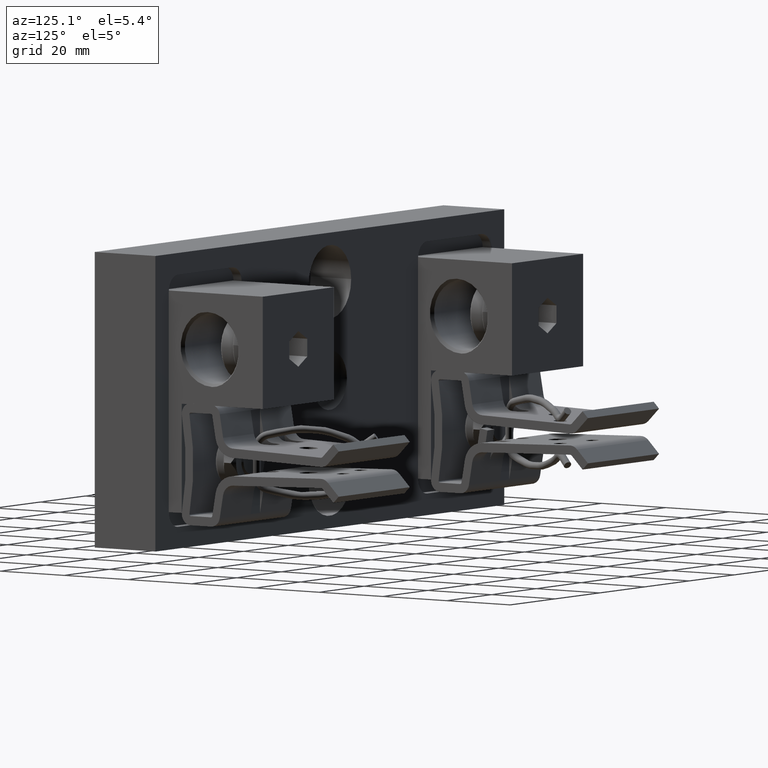
[diagram: clean part render]
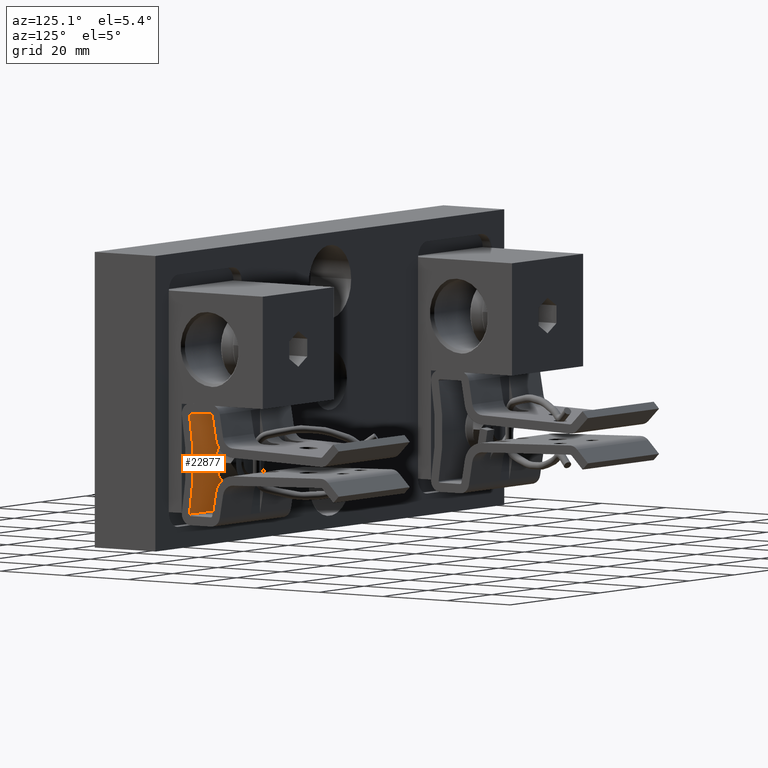
[diagram: same view with one face highlighted and labeled with its STEP entity id]
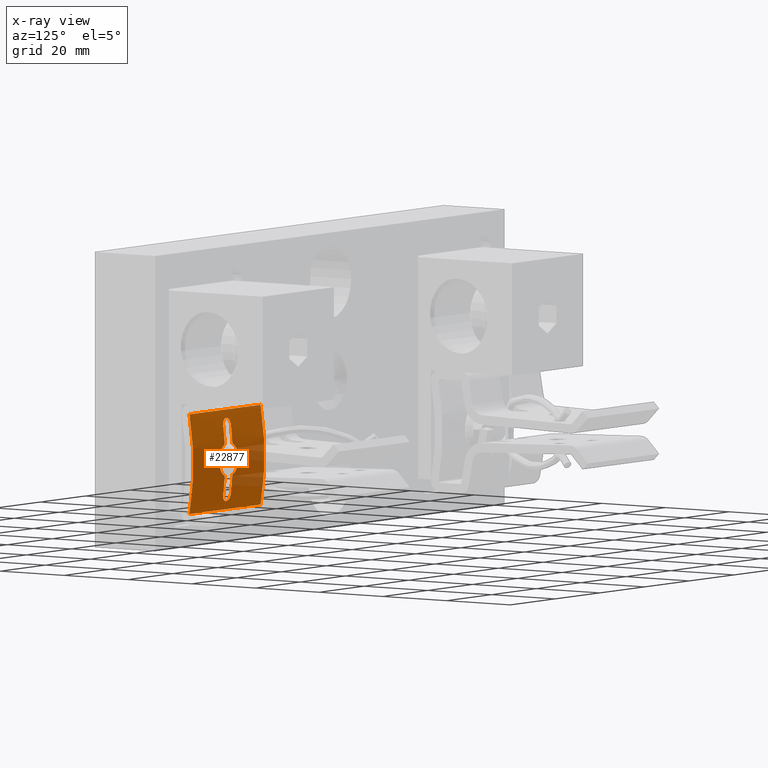
[diagram: x-ray of the same camera — body ghosted, the highlighted face saturated]
A machine part, auxiliary view. The second image highlights one B-rep face of the part: STEP entity #22877.
The next image is the same camera in x-ray: the body ghosted, the highlighted face saturated — about 12% of this face is hidden behind the body in this view.
In plain terms, the highlighted cylindrical surface (partial cylindrical patch) has radius 68.7517 mm, axis along (-1, 0, -0).
Its self-contained STEP definition (entity closure, byte-faithful):
#39 = CARTESIAN_POINT ( 'NONE',  ( 2.362001392721677600, 1.042000088499937000, -0.6116996189345611500 ) ) ;
#98 = CIRCLE ( 'NONE', #29874, 2.706760416666660800 ) ;
#139 = ORIENTED_EDGE ( 'NONE', *, *, #29352, .T. ) ;
#157 = CARTESIAN_POINT ( 'NONE',  ( 2.273037296817359100, 1.037760978058167400, -0.4684276981722396700 ) ) ;
#337 = LINE ( 'NONE', #15618, #7311 ) ;
#514 = DIRECTION ( 'NONE',  ( -1.000000000000000000, 0.0000000000000000000, -2.775557561562890700E-017 ) ) ;
#1001 = DIRECTION ( 'NONE',  ( 0.0000000000000000000, 0.0000000000000000000, 1.000000000000000000 ) ) ;
#1687 = EDGE_CURVE ( 'NONE', #11354, #4424, #30812, .T. ) ;
#1887 = CIRCLE ( 'NONE', #8505, 2.706760416666660800 ) ;
#1941 = CARTESIAN_POINT ( 'NONE',  ( 2.815000000000000800, 0.9942820666832451500, -0.1139910821202431600 ) ) ;
#2083 = CARTESIAN_POINT ( 'NONE',  ( 2.122500000000000500, 1.018098555373154100, -0.9789425723846643100 ) ) ;
#2131 = AXIS2_PLACEMENT_3D ( 'NONE', #13785, #31956, #16411 ) ;
#2196 = CARTESIAN_POINT ( 'NONE',  ( 2.194365580912584200, 1.008900901923321500, -1.042003680935629000 ) ) ;
#2318 = CARTESIAN_POINT ( 'NONE',  ( 2.257500000000001200, 1.017511660360844300, -0.9833851703908482700 ) ) ;
#2428 = CARTESIAN_POINT ( 'NONE',  ( 2.056218319787850300, 1.039834678861351300, -0.5115745406402630900 ) ) ;
#2538 = CARTESIAN_POINT ( 'NONE',  ( 2.030645438898327700, 1.041223571217394500, -0.6852685243351087600 ) ) ;
#2553 = EDGE_CURVE ( 'NONE', #30662, #11354, #22637, .T. ) ;
#2580 = CARTESIAN_POINT ( 'NONE',  ( 2.287234473579663300, 1.038248410114470400, -0.7628665743612863500 ) ) ;
#2688 = CARTESIAN_POINT ( 'NONE',  ( 2.358965198024570900, 1.041808576343617300, -0.5867532630951513000 ) ) ;
#2778 = EDGE_CURVE ( 'NONE', #23495, #4005, #1887, .T. ) ;
#3872 = CIRCLE ( 'NONE', #9330, 2.706760416666660800 ) ;
#4005 = VERTEX_POINT ( 'NONE', #31984 ) ;
#4424 = VERTEX_POINT ( 'NONE', #19305 ) ;
#4729 = CARTESIAN_POINT ( 'NONE',  ( 2.122934299431032700, 1.017510323968344100, -0.9833103794406598000 ) ) ;
#4842 = CARTESIAN_POINT ( 'NONE',  ( 2.207558871735598500, 1.009243693219028100, -1.039827042881451300 ) ) ;
#4880 = LINE ( 'NONE', #7859, #17859 ) ;
#5056 = CARTESIAN_POINT ( 'NONE',  ( 2.041923638907311200, 1.040581227539956600, -0.5320960218295947000 ) ) ;
#5185 = CARTESIAN_POINT ( 'NONE',  ( 2.257500000000000700, 1.018685447000701800, -0.2654999999999992400 ) ) ;
#5186 = CARTESIAN_POINT ( 'NONE',  ( 2.041874832277865300, 1.040583885560391900, -0.7078236332596105100 ) ) ;
#5234 = CARTESIAN_POINT ( 'NONE',  ( 2.312658736402257300, 1.039307307782856700, -0.7408654317079841300 ) ) ;
#5345 = CARTESIAN_POINT ( 'NONE',  ( 2.352322978189641800, 1.041401248996067300, -0.5625122833218025900 ) ) ;
#6687 = ORIENTED_EDGE ( 'NONE', *, *, #2778, .T. ) ;
#6785 = ORIENTED_EDGE ( 'NONE', *, *, #2553, .T. ) ;
#6843 = VERTEX_POINT ( 'NONE', #15614 ) ;
#6861 = ORIENTED_EDGE ( 'NONE', *, *, #24971, .T. ) ;
#7311 = VECTOR ( 'NONE', #25942, 39.37007874015748100 ) ;
#7348 = CARTESIAN_POINT ( 'NONE',  ( 2.125921236549942300, 1.015736660783614900, -0.9961706108484726900 ) ) ;
#7387 = EDGE_LOOP ( 'NONE', ( #31467, #6861, #6785, #18268, #31849, #139, #32492, #13402 ) ) ;
#7468 = CARTESIAN_POINT ( 'NONE',  ( 2.219974561418102300, 1.009975474190407200, -1.035141937950852400 ) ) ;
#7569 = CARTESIAN_POINT ( 'NONE',  ( 2.122500000000000500, 1.037372852295748800, -0.4617983881245192900 ) ) ;
#7681 = CARTESIAN_POINT ( 'NONE',  ( 2.030665867331519400, 1.041222351509780500, -0.5546787877937402500 ) ) ;
#7788 = CARTESIAN_POINT ( 'NONE',  ( 2.056187564101818100, 1.039836220849372100, -0.7283866015396286400 ) ) ;
#7835 = CARTESIAN_POINT ( 'NONE',  ( 2.328865556284043200, 1.040092711672508300, -0.7218335670128418500 ) ) ;
#7859 = CARTESIAN_POINT ( 'NONE',  ( 2.815000000000000800, 0.9942820666832451500, -0.1139910821202431600 ) ) ;
#7947 = CARTESIAN_POINT ( 'NONE',  ( 2.342275510892384700, 1.040815917085266900, -0.5395884013636514900 ) ) ;
#8505 = AXIS2_PLACEMENT_3D ( 'NONE', #24563, #9027, #27164 ) ;
#8708 = CARTESIAN_POINT ( 'NONE',  ( 2.122500000000000500, 1.037372852295748800, -0.7782016118754792000 ) ) ;
#8725 = CIRCLE ( 'NONE', #9915, 2.706760416666660800 ) ;
#9027 = DIRECTION ( 'NONE',  ( 1.000000000000000000, 0.0000000000000000000, 2.775557561562890700E-017 ) ) ;
#9064 = EDGE_LOOP ( 'NONE', ( #6687, #21267, #19338, #23776 ) ) ;
#9330 = AXIS2_PLACEMENT_3D ( 'NONE', #29950, #14416, #32590 ) ;
#9915 = AXIS2_PLACEMENT_3D ( 'NONE', #16116, #514, #18709 ) ;
#9980 = CARTESIAN_POINT ( 'NONE',  ( 2.131345695419613100, 1.014021277871699000, -1.008193622175516300 ) ) ;
#10089 = CARTESIAN_POINT ( 'NONE',  ( 2.231253882137323300, 1.011058386629800400, -1.028107643456710700 ) ) ;
#10299 = CARTESIAN_POINT ( 'NONE',  ( 2.020493348919893500, 1.041838463016201200, -0.5863975911386316600 ) ) ;
#10416 = CARTESIAN_POINT ( 'NONE',  ( 2.073341602991475500, 1.039039762739799100, -0.7466716598110390000 ) ) ;
#10462 = CARTESIAN_POINT ( 'NONE',  ( 2.342229422044274800, 1.040813306736668100, -0.7005011159014483700 ) ) ;
#10484 = DIRECTION ( 'NONE',  ( -1.000000000000000000, 0.0000000000000000000, -2.775557561562890700E-017 ) ) ;
#10572 = CARTESIAN_POINT ( 'NONE',  ( 2.328898063966779100, 1.040094366949899400, -0.5182091178056186200 ) ) ;
#10639 = EDGE_CURVE ( 'NONE', #6843, #31254, #11136, .T. ) ;
#11136 = B_SPLINE_CURVE_WITH_KNOTS ( 'NONE', 3,
 ( #17668, #2083, #4729, #22865, #7348, #25516, #9980, #28101, #12555, #30715, #15168, #33337, #17769, #2196, #20351, #4842, #22983, #7468, #25627, #10089, #28205, #12655, #30818, #15292, #33450, #17875, #2318, #20456 ),
 .UNSPECIFIED., .F., .F.,
 ( 4, 2, 2, 2, 2, 2, 2, 2, 2, 2, 2, 2, 2, 4 ),
 ( 0.0000000000000000000, 0.0003366238419840861100, 0.0006732476839681722200, 0.001009871525952258200, 0.001346495367936344400, 0.002019743051904523700, 0.002692990735872703200, 0.003029614577856792700, 0.003366238419840882200, 0.003702862261824972200, 0.004039486103809062200, 0.004376109945793151700, 0.004712733787777241200, 0.005385981471745413300 ),
 .UNSPECIFIED. ) ;
#11354 = VERTEX_POINT ( 'NONE', #17935 ) ;
#11470 = CARTESIAN_POINT ( 'NONE',  ( 2.257065700568968900, 1.017510323968344100, -0.2566896205593389200 ) ) ;
#12555 = CARTESIAN_POINT ( 'NONE',  ( 2.139051289035510900, 1.012432969025786500, -1.018995594307010600 ) ) ;
#12655 = CARTESIAN_POINT ( 'NONE',  ( 2.240948787980904500, 1.012432255395883300, -1.019000656949617900 ) ) ;
#12870 = VERTEX_POINT ( 'NONE', #8708 ) ;
#12878 = CARTESIAN_POINT ( 'NONE',  ( 2.017998607278323100, 1.042000088499937400, -0.6283003810654372900 ) ) ;
#12985 = CARTESIAN_POINT ( 'NONE',  ( 2.106962703182642600, 1.037760978058167100, -0.7715723018277590400 ) ) ;
#13024 = CARTESIAN_POINT ( 'NONE',  ( 2.352305422865632600, 1.041400196250048100, -0.6775356964746965800 ) ) ;
#13134 = CARTESIAN_POINT ( 'NONE',  ( 2.312709482098485500, 1.039309630624810900, -0.4991868947612151400 ) ) ;
#13145 = VERTEX_POINT ( 'NONE', #22596 ) ;
#13180 = DIRECTION ( 'NONE',  ( 0.0000000000000000000, 0.0000000000000000000, 1.000000000000000000 ) ) ;
#13265 = FACE_OUTER_BOUND ( 'NONE', #9064, .T. ) ;
#13402 = ORIENTED_EDGE ( 'NONE', *, *, #10639, .T. ) ;
#13785 = CARTESIAN_POINT ( 'NONE',  ( 2.257500000000000700, -1.664760416666659600, -0.6199999999999994400 ) ) ;
#13793 = CARTESIAN_POINT ( 'NONE',  ( 2.257500000000000700, -1.664760416666659600, -0.6199999999999994400 ) ) ;
#14416 = DIRECTION ( 'NONE',  ( 1.000000000000000000, 0.0000000000000000000, 2.775557561562890700E-017 ) ) ;
#14682 = CARTESIAN_POINT ( 'NONE',  ( 2.257500000000000700, 1.037372852295748800, -0.7782016118754792000 ) ) ;
#14950 = AXIS2_PLACEMENT_3D ( 'NONE', #32155, #16608, #1001 ) ;
#15168 = CARTESIAN_POINT ( 'NONE',  ( 2.155890604377498100, 1.010245111049260700, -1.033411625420228800 ) ) ;
#15292 = CARTESIAN_POINT ( 'NONE',  ( 2.248601793038098200, 1.014008213034759400, -1.008283659856363100 ) ) ;
#15390 = CARTESIAN_POINT ( 'NONE',  ( 2.092765526420337100, 1.038248410114470900, -0.4771334256387118100 ) ) ;
#15496 = CARTESIAN_POINT ( 'NONE',  ( 2.021034801975430700, 1.041808576343617100, -0.6532467369048471400 ) ) ;
#15614 = CARTESIAN_POINT ( 'NONE',  ( 2.122500000000000500, 1.018685447000701800, -0.9744999999999992600 ) ) ;
#15618 = CARTESIAN_POINT ( 'NONE',  ( 2.815000000000000800, 0.9942820666832451500, -1.126008917879755400 ) ) ;
#15670 = CARTESIAN_POINT ( 'NONE',  ( 2.361997207318185000, 1.041999822540162500, -0.6366871918206275000 ) ) ;
#15710 = DIRECTION ( 'NONE',  ( -1.000000000000000000, 0.0000000000000000000, -2.775557561562890700E-017 ) ) ;
#15777 = CARTESIAN_POINT ( 'NONE',  ( 2.287263890011552300, 1.038249261241092500, -0.4771458797676771400 ) ) ;
#16116 = CARTESIAN_POINT ( 'NONE',  ( 2.122500000000000500, -1.664760416666659600, -0.6199999999999994400 ) ) ;
#16411 = DIRECTION ( 'NONE',  ( 0.0000000000000000000, 0.0000000000000000000, -1.000000000000000000 ) ) ;
#16418 = DIRECTION ( 'NONE',  ( 0.0000000000000000000, 0.0000000000000000000, -1.000000000000000000 ) ) ;
#16608 = DIRECTION ( 'NONE',  ( -1.000000000000000000, 0.0000000000000000000, -2.775557561562890700E-017 ) ) ;
#17668 = CARTESIAN_POINT ( 'NONE',  ( 2.122500000000000500, 1.018685447000701800, -0.9744999999999992600 ) ) ;
#17769 = CARTESIAN_POINT ( 'NONE',  ( 2.181099194609055700, 1.008902656090962600, -1.041992567069617700 ) ) ;
#17859 = VECTOR ( 'NONE', #10484, 39.37007874015748100 ) ;
#17875 = CARTESIAN_POINT ( 'NONE',  ( 2.255754130174707100, 1.016311593319780200, -0.9921190909505142000 ) ) ;
#17935 = CARTESIAN_POINT ( 'NONE',  ( 2.257500000000000700, 1.018685447000701800, -0.2654999999999992400 ) ) ;
#17976 = CARTESIAN_POINT ( 'NONE',  ( 2.067341263597743900, 1.039307307782856500, -0.4991345682920143600 ) ) ;
#18092 = CARTESIAN_POINT ( 'NONE',  ( 2.027677021810359500, 1.041401248996067800, -0.6774877166781957400 ) ) ;
#18245 = CARTESIAN_POINT ( 'NONE',  ( 2.361401027595406300, 1.041961731623028100, -0.6033785861750262700 ) ) ;
#18268 = ORIENTED_EDGE ( 'NONE', *, *, #1687, .T. ) ;
#18283 = CARTESIAN_POINT ( 'NONE',  ( 2.815000000000000800, -1.664760416666659600, -0.6199999999999994400 ) ) ;
#18359 = CARTESIAN_POINT ( 'NONE',  ( 2.257500000000000700, 1.037372852295748800, -0.4617983881245192900 ) ) ;
#18709 = DIRECTION ( 'NONE',  ( 0.0000000000000000000, 0.0000000000000000000, 1.000000000000000000 ) ) ;
#18776 = B_SPLINE_CURVE_WITH_KNOTS ( 'NONE', 3,
 ( #7569, #23087, #15390, #33550, #17976, #2428, #20556, #5056, #23209, #7681, #25836, #10299, #28420, #12878, #31039, #15496, #33670, #18092, #2538, #20671, #5186, #23337, #7788, #25941, #10416, #28535, #12985, #31149 ),
 .UNSPECIFIED., .F., .F.,
 ( 4, 2, 2, 2, 2, 2, 2, 2, 2, 2, 2, 2, 2, 4 ),
 ( 0.0000000000000000000, 0.001269255811971724600, 0.001903883717957577600, 0.002538511623943430600, 0.003173139529929283300, 0.003807767435915136100, 0.005077023247886842100, 0.005711651153872691400, 0.006346279059858541500, 0.006980906965844390800, 0.007615534871830241000, 0.008250162777816091200, 0.008884790683801940500, 0.01015404649577362500 ),
 .UNSPECIFIED. ) ;
#18812 = EDGE_CURVE ( 'NONE', #31254, #22651, #98, .T. ) ;
#19305 = CARTESIAN_POINT ( 'NONE',  ( 2.122500000000000500, 1.018685447000701800, -0.2654999999999992400 ) ) ;
#19338 = ORIENTED_EDGE ( 'NONE', *, *, #23142, .F. ) ;
#19360 = FACE_BOUND ( 'NONE', #7387, .T. ) ;
#20351 = CARTESIAN_POINT ( 'NONE',  ( 2.198856508878678500, 1.008970503005643100, -1.041563393582072700 ) ) ;
#20456 = CARTESIAN_POINT ( 'NONE',  ( 2.257500000000000700, 1.018685447000701800, -0.9744999999999992600 ) ) ;
#20556 = CARTESIAN_POINT ( 'NONE',  ( 2.051134443715958000, 1.040092711672508100, -0.5181664329871565900 ) ) ;
#20604 = CARTESIAN_POINT ( 'NONE',  ( 2.273037327506157700, 1.037760978824781200, -0.7715722887337461700 ) ) ;
#20671 = CARTESIAN_POINT ( 'NONE',  ( 2.037724489107616900, 1.040815917085266900, -0.7004115986363468300 ) ) ;
#20714 = CARTESIAN_POINT ( 'NONE',  ( 2.306563760756471300, 1.039035732999193500, -0.7467566168246022600 ) ) ;
#20818 = CARTESIAN_POINT ( 'NONE',  ( 2.257500000000001200, 1.018098555373154500, -0.2610574276153341300 ) ) ;
#20822 = CARTESIAN_POINT ( 'NONE',  ( 2.357124282282093500, 1.041693487833178100, -0.5784902289945718100 ) ) ;
#21267 = ORIENTED_EDGE ( 'NONE', *, *, #32215, .F. ) ;
#22596 = CARTESIAN_POINT ( 'NONE',  ( 2.815000000000000800, 0.9942820666832451500, -1.126008917879755400 ) ) ;
#22637 = CIRCLE ( 'NONE', #2131, 2.706760416666660800 ) ;
#22651 = VERTEX_POINT ( 'NONE', #14682 ) ;
#22865 = CARTESIAN_POINT ( 'NONE',  ( 2.124635097540292300, 1.016332457497376900, -0.9919028878387383700 ) ) ;
#22877 = ADVANCED_FACE ( 'NONE', ( #19360, #13265 ), #23006, .T. ) ;
#22983 = CARTESIAN_POINT ( 'NONE',  ( 2.211782382466811000, 1.009445457540133000, -1.038542538868412200 ) ) ;
#23006 = CYLINDRICAL_SURFACE ( 'NONE', #33393, 2.706760416666660800 ) ;
#23087 = CARTESIAN_POINT ( 'NONE',  ( 2.106962672493844400, 1.037760978824781500, -0.4684277112662526000 ) ) ;
#23142 = EDGE_CURVE ( 'NONE', #13145, #25785, #3872, .T. ) ;
#23209 = CARTESIAN_POINT ( 'NONE',  ( 2.037770577955726900, 1.040813306736668100, -0.5394988840985502900 ) ) ;
#23257 = CARTESIAN_POINT ( 'NONE',  ( 2.257500000000000700, 1.037372852295748800, -0.7782016118754792000 ) ) ;
#23337 = CARTESIAN_POINT ( 'NONE',  ( 2.051101936033221700, 1.040094366949899400, -0.7217908821943797000 ) ) ;
#23379 = CARTESIAN_POINT ( 'NONE',  ( 2.323781680212151800, 1.039834678861351700, -0.7284254593597355700 ) ) ;
#23491 = CARTESIAN_POINT ( 'NONE',  ( 2.349354561101674400, 1.041223571217394300, -0.5547314756648901200 ) ) ;
#23495 = VERTEX_POINT ( 'NONE', #24970 ) ;
#23776 = ORIENTED_EDGE ( 'NONE', *, *, #25530, .T. ) ;
#24563 = CARTESIAN_POINT ( 'NONE',  ( 1.565000000000000400, -1.664760416666659600, -0.6199999999999994400 ) ) ;
#24970 = CARTESIAN_POINT ( 'NONE',  ( 1.565000000000000400, 0.9942820666832451500, -1.126008917879755400 ) ) ;
#24971 = EDGE_CURVE ( 'NONE', #22651, #30662, #25403, .T. ) ;
#25271 = CARTESIAN_POINT ( 'NONE',  ( 2.122500000000000500, 1.037372852295748800, -0.4617983881245192900 ) ) ;
#25403 = B_SPLINE_CURVE_WITH_KNOTS ( 'NONE', 3,
 ( #23257, #20604, #2580, #20714, #5234, #23379, #7835, #25982, #10462, #28577, #13024, #31192, #15670, #39, #18245, #2688, #20822, #5345, #23491, #7947, #26098, #10572, #28682, #13134, #31305, #15777, #157, #18359 ),
 .UNSPECIFIED., .F., .F.,
 ( 4, 2, 2, 2, 2, 2, 2, 2, 2, 2, 2, 2, 2, 4 ),
 ( 0.0000000000000000000, 0.001269255811971717900, 0.001903883717957568700, 0.002538511623943419700, 0.003173139529929270800, 0.003807767435915121800, 0.005077023247886834300, 0.005711651153872684400, 0.006346279059858536300, 0.006980906965844386500, 0.007615534871830238400, 0.008250162777816087700, 0.008884790683801940500, 0.01015404649577362500 ),
 .UNSPECIFIED. ) ;
#25406 = CARTESIAN_POINT ( 'NONE',  ( 2.122500000000000500, 1.018685447000701800, -0.2654999999999992400 ) ) ;
#25516 = CARTESIAN_POINT ( 'NONE',  ( 2.129286054718901900, 1.014579677473036000, -1.004324824362236500 ) ) ;
#25530 = EDGE_CURVE ( 'NONE', #13145, #23495, #337, .T. ) ;
#25627 = CARTESIAN_POINT ( 'NONE',  ( 2.223935264356105400, 1.010305253452140600, -1.033015468565698300 ) ) ;
#25785 = VERTEX_POINT ( 'NONE', #1941 ) ;
#25831 = CARTESIAN_POINT ( 'NONE',  ( 2.122499999999999600, 1.017511660360844100, -0.2566148296091505000 ) ) ;
#25836 = CARTESIAN_POINT ( 'NONE',  ( 2.027694577134370000, 1.041400196250048100, -0.5624643035253024100 ) ) ;
#25941 = CARTESIAN_POINT ( 'NONE',  ( 2.067290517901515300, 1.039309630624810900, -0.7408131052387833000 ) ) ;
#25942 = DIRECTION ( 'NONE',  ( -1.000000000000000000, 0.0000000000000000000, -2.775557561562890700E-017 ) ) ;
#25977 = CARTESIAN_POINT ( 'NONE',  ( 2.124245869825294600, 1.016311593319779500, -0.2478809090494843700 ) ) ;
#25982 = CARTESIAN_POINT ( 'NONE',  ( 2.338076361092690900, 1.040581227539956900, -0.7079039781704045100 ) ) ;
#26098 = CARTESIAN_POINT ( 'NONE',  ( 2.338125167722136400, 1.040583885560392400, -0.5321763667403883700 ) ) ;
#26171 = CARTESIAN_POINT ( 'NONE',  ( 2.129296792437662200, 1.014576556563321600, -0.2356534324941296200 ) ) ;
#26217 = CARTESIAN_POINT ( 'NONE',  ( 2.131398206961903100, 1.014008213034759400, -0.2317163401436352600 ) ) ;
#26657 = CARTESIAN_POINT ( 'NONE',  ( 2.136265489385283700, 1.012939495346368600, -0.2244134062063121700 ) ) ;
#26795 = EDGE_CURVE ( 'NONE', #12870, #6843, #8725, .T. ) ;
#26994 = CARTESIAN_POINT ( 'NONE',  ( 2.257500000000000700, 1.018685447000701800, -0.9744999999999992600 ) ) ;
#27164 = DIRECTION ( 'NONE',  ( 0.0000000000000000000, 0.0000000000000000000, 1.000000000000000000 ) ) ;
#27329 = CARTESIAN_POINT ( 'NONE',  ( 2.139051212019096300, 1.012432255395883800, -0.2209993430503802100 ) ) ;
#27409 = VERTEX_POINT ( 'NONE', #25271 ) ;
#27449 = CARTESIAN_POINT ( 'NONE',  ( 2.145340154551365100, 1.011484432615964200, -0.2146906930752362200 ) ) ;
#27764 = CARTESIAN_POINT ( 'NONE',  ( 2.148746117862677400, 1.011058386629800400, -0.2118923565432875300 ) ) ;
#27979 = CARTESIAN_POINT ( 'NONE',  ( 2.156064735643895300, 1.010305253452140400, -0.2069845314343001800 ) ) ;
#28101 = CARTESIAN_POINT ( 'NONE',  ( 2.136213028769945700, 1.012949512143133800, -1.015518890124095700 ) ) ;
#28205 = CARTESIAN_POINT ( 'NONE',  ( 2.234659845448635700, 1.011484432615964200, -1.025309306924762100 ) ) ;
#28414 = CARTESIAN_POINT ( 'NONE',  ( 2.255364902459708900, 1.016332457497376900, -0.2480971121612601800 ) ) ;
#28420 = CARTESIAN_POINT ( 'NONE',  ( 2.018002792681815800, 1.041999822540162500, -0.6033128081793712700 ) ) ;
#28450 = EDGE_CURVE ( 'NONE', #4424, #27409, #31272, .T. ) ;
#28535 = CARTESIAN_POINT ( 'NONE',  ( 2.092736109988449800, 1.038249261241092300, -0.7628541202323214600 ) ) ;
#28577 = CARTESIAN_POINT ( 'NONE',  ( 2.349334132668482200, 1.041222351509780700, -0.6853212122062583000 ) ) ;
#28682 = CARTESIAN_POINT ( 'NONE',  ( 2.323812435898184400, 1.039836220849371700, -0.5116133984603701300 ) ) ;
#29009 = CARTESIAN_POINT ( 'NONE',  ( 2.160025438581899800, 1.009975474190406300, -0.2048580620491461100 ) ) ;
#29247 = CARTESIAN_POINT ( 'NONE',  ( 2.168217617533189300, 1.009445457540132800, -0.2014574611315859100 ) ) ;
#29352 = EDGE_CURVE ( 'NONE', #27409, #12870, #18776, .T. ) ;
#29468 = CARTESIAN_POINT ( 'NONE',  ( 2.172441128264402300, 1.009243693219028300, -0.2001729571185472400 ) ) ;
#29574 = CARTESIAN_POINT ( 'NONE',  ( 2.181143491121322300, 1.008970503005643300, -0.1984366064179253800 ) ) ;
#29874 = AXIS2_PLACEMENT_3D ( 'NONE', #13793, #31965, #16418 ) ;
#29950 = CARTESIAN_POINT ( 'NONE',  ( 2.815000000000000800, -1.664760416666659600, -0.6199999999999994400 ) ) ;
#30010 = CARTESIAN_POINT ( 'NONE',  ( 2.185634419087417100, 1.008900901923322200, -0.1979963190643696000 ) ) ;
#30129 = CARTESIAN_POINT ( 'NONE',  ( 2.198900805390945600, 1.008902656090962400, -0.1980074329303807800 ) ) ;
#30363 = CARTESIAN_POINT ( 'NONE',  ( 2.207828365891727300, 1.009187542628338100, -0.1998023603999610200 ) ) ;
#30485 = CARTESIAN_POINT ( 'NONE',  ( 2.224109395622503500, 1.010245111049261000, -0.2065883745797698300 ) ) ;
#30662 = VERTEX_POINT ( 'NONE', #32553 ) ;
#30715 = CARTESIAN_POINT ( 'NONE',  ( 2.148367407348624500, 1.011026750629081800, -1.028356229684535000 ) ) ;
#30812 = B_SPLINE_CURVE_WITH_KNOTS ( 'NONE', 3,
 ( #5185, #20818, #11470, #28414, #31746, #31632, #31524, #31410, #31146, #31037, #30485, #30363, #30129, #30010, #29574, #29468, #29247, #29009, #27979, #27764, #27449, #27329, #26657, #26217, #26171, #25977, #25831, #25406 ),
 .UNSPECIFIED., .F., .F.,
 ( 4, 2, 2, 2, 2, 2, 2, 2, 2, 2, 2, 2, 2, 4 ),
 ( 8.673617379884035500E-019, 0.0003366238419840938100, 0.0006732476839681867500, 0.001009871525952279900, 0.001346495367936372600, 0.002019743051904559300, 0.002692990735872745700, 0.003029614577856828700, 0.003366238419840911300, 0.003702862261824993900, 0.004039486103809076900, 0.004376109945793160400, 0.004712733787777242100, 0.005385981471745414200 ),
 .UNSPECIFIED. ) ;
#30818 = CARTESIAN_POINT ( 'NONE',  ( 2.243734510614717100, 1.012939495346368600, -1.015586593793686100 ) ) ;
#31037 = CARTESIAN_POINT ( 'NONE',  ( 2.231632592651376300, 1.011026750629081500, -0.2116437703154633300 ) ) ;
#31039 = CARTESIAN_POINT ( 'NONE',  ( 2.018598972404595000, 1.041961731623028300, -0.6366214138249721700 ) ) ;
#31146 = CARTESIAN_POINT ( 'NONE',  ( 2.240948710964491200, 1.012432969025786900, -0.2210044056929880700 ) ) ;
#31149 = CARTESIAN_POINT ( 'NONE',  ( 2.122500000000000500, 1.037372852295748800, -0.7782016118754792000 ) ) ;
#31192 = CARTESIAN_POINT ( 'NONE',  ( 2.359506651080108200, 1.041838463016201400, -0.6536024088613674500 ) ) ;
#31254 = VERTEX_POINT ( 'NONE', #26994 ) ;
#31272 = CIRCLE ( 'NONE', #14950, 2.706760416666660800 ) ;
#31305 = CARTESIAN_POINT ( 'NONE',  ( 2.306658397008525700, 1.039039762739799400, -0.4933283401889592700 ) ) ;
#31410 = CARTESIAN_POINT ( 'NONE',  ( 2.243786971230055100, 1.012949512143134000, -0.2244811098759029200 ) ) ;
#31467 = ORIENTED_EDGE ( 'NONE', *, *, #18812, .T. ) ;
#31524 = CARTESIAN_POINT ( 'NONE',  ( 2.248654304580389100, 1.014021277871698800, -0.2318063778244823500 ) ) ;
#31632 = CARTESIAN_POINT ( 'NONE',  ( 2.250713945281099800, 1.014579677473035600, -0.2356751756377621100 ) ) ;
#31746 = CARTESIAN_POINT ( 'NONE',  ( 2.254078763450059400, 1.015736660783614700, -0.2438293891515259900 ) ) ;
#31849 = ORIENTED_EDGE ( 'NONE', *, *, #28450, .T. ) ;
#31956 = DIRECTION ( 'NONE',  ( 1.000000000000000000, 0.0000000000000000000, 2.775557561562890700E-017 ) ) ;
#31965 = DIRECTION ( 'NONE',  ( 1.000000000000000000, 0.0000000000000000000, 2.775557561562890700E-017 ) ) ;
#31984 = CARTESIAN_POINT ( 'NONE',  ( 1.565000000000000400, 0.9942820666832451500, -0.1139910821202431600 ) ) ;
#32155 = CARTESIAN_POINT ( 'NONE',  ( 2.122500000000000500, -1.664760416666659600, -0.6199999999999994400 ) ) ;
#32215 = EDGE_CURVE ( 'NONE', #25785, #4005, #4880, .T. ) ;
#32492 = ORIENTED_EDGE ( 'NONE', *, *, #26795, .T. ) ;
#32553 = CARTESIAN_POINT ( 'NONE',  ( 2.257500000000000700, 1.037372852295748800, -0.4617983881245192900 ) ) ;
#32590 = DIRECTION ( 'NONE',  ( 0.0000000000000000000, 0.0000000000000000000, 1.000000000000000000 ) ) ;
#33337 = CARTESIAN_POINT ( 'NONE',  ( 2.172171634108274000, 1.009187542628338100, -1.040197639600037900 ) ) ;
#33393 = AXIS2_PLACEMENT_3D ( 'NONE', #18283, #15710, #13180 ) ;
#33450 = CARTESIAN_POINT ( 'NONE',  ( 2.250703207562338100, 1.014576556563322700, -1.004346567505868700 ) ) ;
#33550 = CARTESIAN_POINT ( 'NONE',  ( 2.073436239243530400, 1.039035732999193700, -0.4932433831753965100 ) ) ;
#33670 = CARTESIAN_POINT ( 'NONE',  ( 2.022875717717908200, 1.041693487833177800, -0.6615097710054265200 ) ) ;